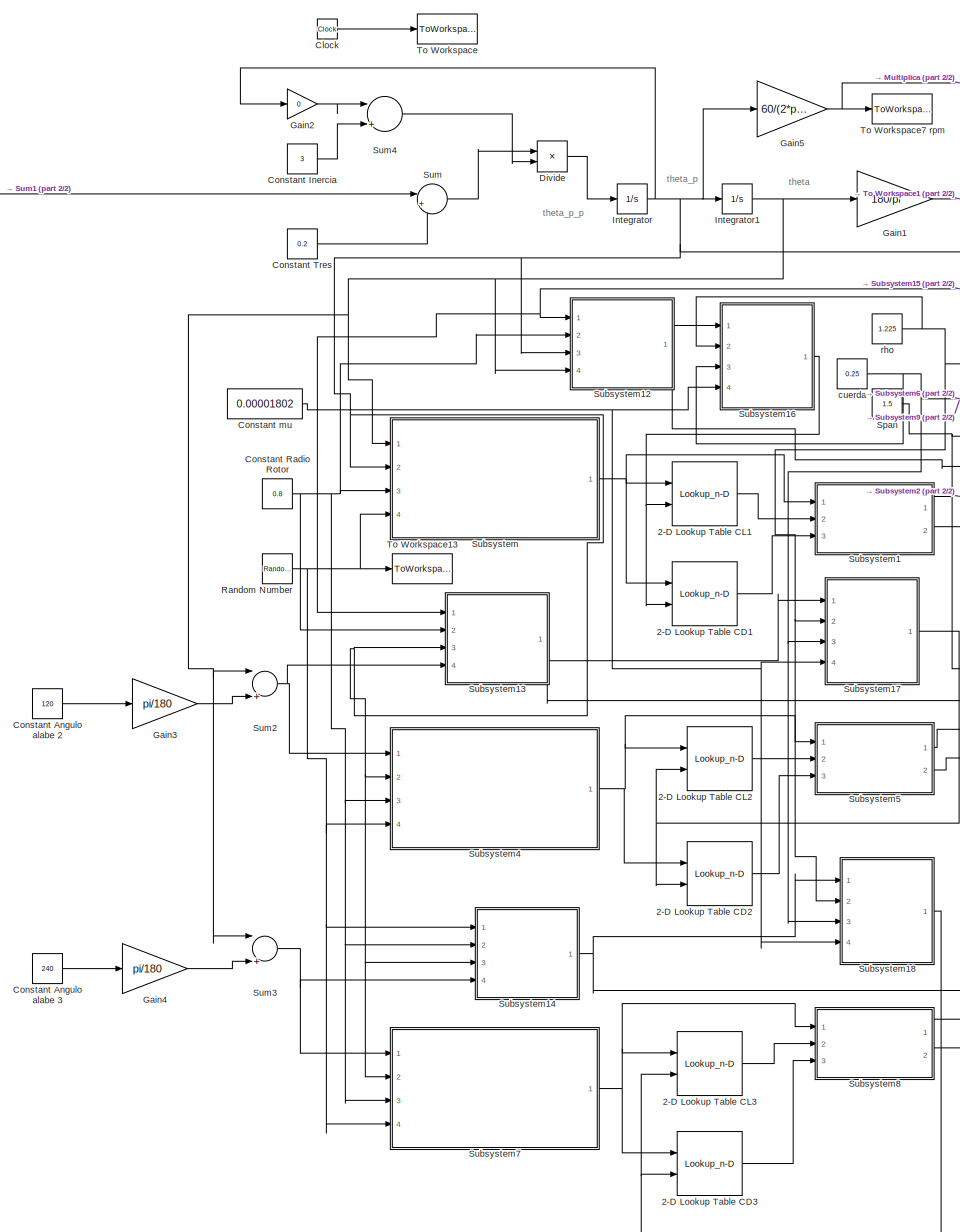
[diagram: root canvas - part 1/2, left side, full height]
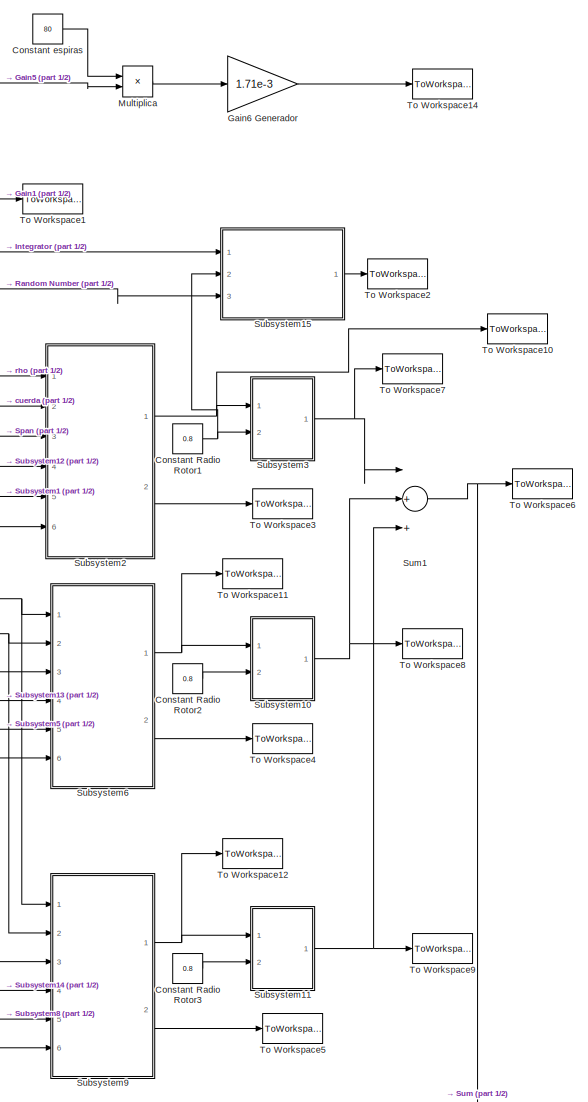
[diagram: root canvas - part 2/2, right side, full height]
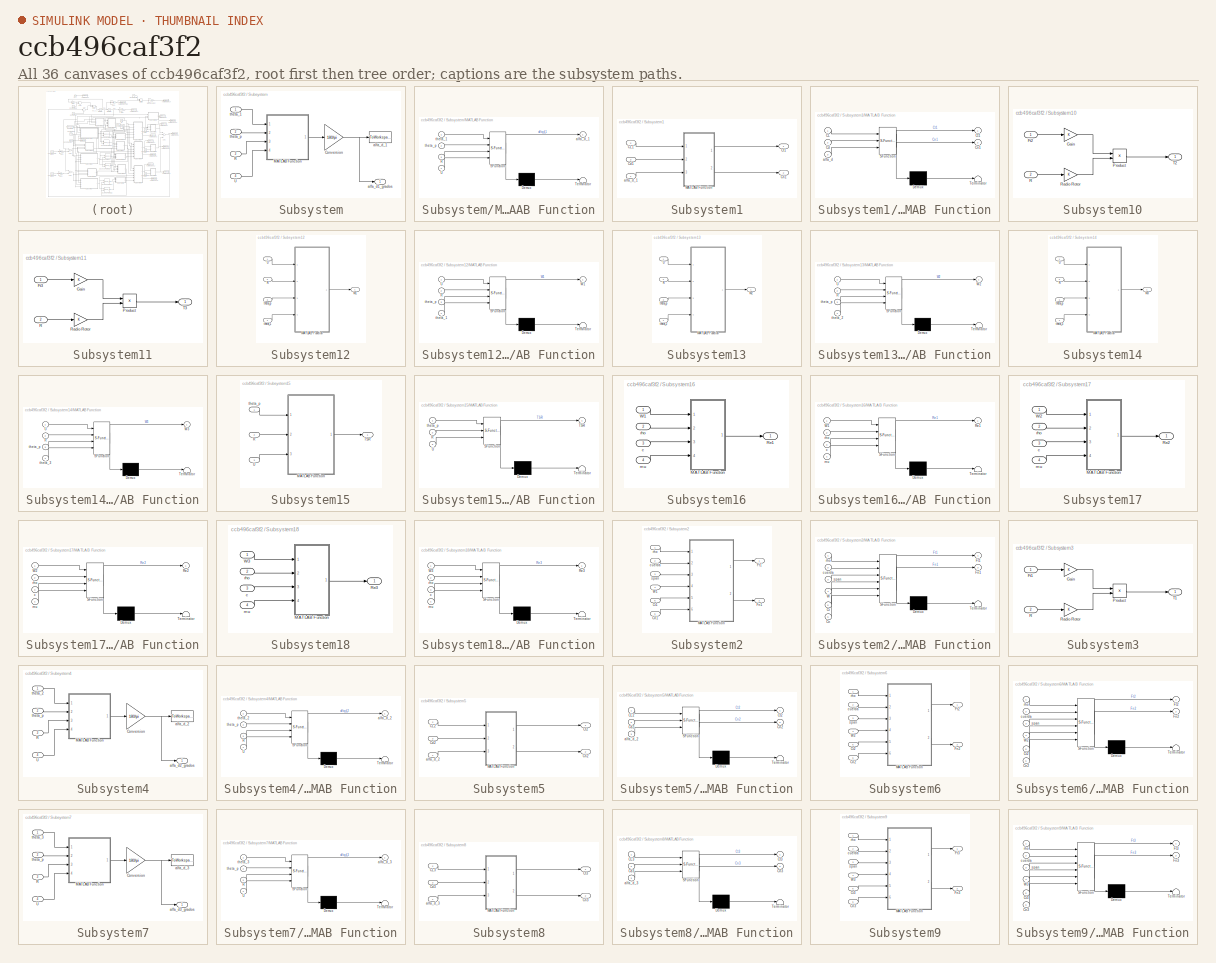
[diagram: thumbnail index - all 36 canvases of the model, root first then tree order]
MODEL slx_ccb496caf3f2
KIND model
CONFIG PostLoadFcn = % Import the data from Excel for a lookup table\ndata_CL = xlsread('DATOS_LOOK_UP_TABLE_CL_v2','CL');\n% Row indices for lookup table\nbreakpoints1_CL = data_CL(2:end,1)';\n% Column indices for lookup table\nbreakpoints2_CL = data_CL(1,2:end);\n% Output values for lookup table\ntable_data_CL = data_CL(2:end,2:end);\n\n% Import the data from Excel for a lookup table\ndata_CD = xlsread('DATOS_LOOK_UP_TABLE_CL...<+220ch>
BLOCK [Lookup_n-D] 2-D Lookup Table CD1
  BreakpointsForDimension1 = breakpoints1_CD
  BreakpointsForDimension2 = breakpoints2_CD
  Ports = [2, 1]
  RndMeth = Simplest
  Table = table_data_CD
BLOCK [Lookup_n-D] 2-D Lookup Table CD2
  BreakpointsForDimension1 = breakpoints1_CD
  BreakpointsForDimension2 = breakpoints2_CD
  Ports = [2, 1]
  RndMeth = Simplest
  Table = table_data_CD
BLOCK [Lookup_n-D] 2-D Lookup Table CD3
  BreakpointsForDimension1 = breakpoints1_CD
  BreakpointsForDimension2 = breakpoints2_CD
  Ports = [2, 1]
  RndMeth = Simplest
  Table = table_data_CD
BLOCK [Lookup_n-D] 2-D Lookup Table CL1
  BreakpointsForDimension1 = breakpoints1_CL
  BreakpointsForDimension2 = breakpoints2_CL
  Ports = [2, 1]
  RndMeth = Simplest
  Table = table_data_CL
BLOCK [Lookup_n-D] 2-D Lookup Table CL2
  BreakpointsForDimension1 = breakpoints1_CL
  BreakpointsForDimension2 = breakpoints2_CL
  Ports = [2, 1]
  RndMeth = Simplest
  Table = table_data_CL
BLOCK [Lookup_n-D] 2-D Lookup Table CL3
  BreakpointsForDimension1 = breakpoints1_CL
  BreakpointsForDimension2 = breakpoints2_CL
  Ports = [2, 1]
  RndMeth = Simplest
  Table = table_data_CL
BLOCK [Clock] Clock
BLOCK [Constant] Constant Angulo alabe 2
  Value = 120
BLOCK [Constant] Constant Angulo alabe 3
  Value = 240
BLOCK [Constant] Constant Inercia
  Value = 3
BLOCK [Constant] Constant Radio Rotor
  Value = 0.8
BLOCK [Constant] Constant Radio Rotor1
  Value = 0.8
BLOCK [Constant] Constant Radio Rotor2
  Value = 0.8
BLOCK [Constant] Constant Radio Rotor3
  Value = 0.8
BLOCK [Constant] Constant Tres
  Value = 0.2
BLOCK [Constant] Constant espiras
  Value = 80
BLOCK [Constant] Constant mu
  Value = 0.00001802
BLOCK [Product] Divide
  InputSameDT = off
  Inputs = */
  OutDataTypeStr = Inherit: Inherit via internal rule
  Ports = [2, 1]
  RndMeth = Floor
  SaturateOnIntegerOverflow = off
BLOCK [Gain] Gain1
  Gain = 180/pi
  OutDataTypeStr = Inherit: Inherit via internal rule
  ParamDataTypeStr = Inherit: Inherit via internal rule
  SaturateOnIntegerOverflow = off
BLOCK [Gain] Gain2
  Gain = 0
  OutDataTypeStr = Inherit: Inherit via internal rule
  ParamDataTypeStr = Inherit: Inherit via internal rule
  SaturateOnIntegerOverflow = off
BLOCK [Gain] Gain3
  Gain = pi/180
  OutDataTypeStr = Inherit: Inherit via internal rule
  ParamDataTypeStr = Inherit: Inherit via internal rule
  SaturateOnIntegerOverflow = off
BLOCK [Gain] Gain4
  Gain = pi/180
  OutDataTypeStr = Inherit: Inherit via internal rule
  ParamDataTypeStr = Inherit: Inherit via internal rule
  SaturateOnIntegerOverflow = off
BLOCK [Gain] Gain5
  Gain = 60/(2*pi)
  OutDataTypeStr = Inherit: Inherit via internal rule
  ParamDataTypeStr = Inherit: Inherit via internal rule
  SaturateOnIntegerOverflow = off
BLOCK [Gain] Gain6 Generador
  Gain = 1.71e-3
  OutDataTypeStr = Inherit: Inherit via internal rule
  ParamDataTypeStr = Inherit: Inherit via internal rule
  SaturateOnIntegerOverflow = off
BLOCK [Integrator] Integrator
  Ports = [1, 1]
BLOCK [Integrator] Integrator1
  Ports = [1, 1]
BLOCK [Product] Multiplica
  InputSameDT = off
  Inputs = **
  OutDataTypeStr = Inherit: Inherit via internal rule
  Ports = [2, 1]
  RndMeth = Floor
  SaturateOnIntegerOverflow = off
BLOCK [RandomNumber] Random Number
  Mean = 8
  SampleTime = 0.1
  Seed = 6
  Variance = 4
BLOCK [Constant] Span
  Value = 1.5
BLOCK [SubSystem] Subsystem
  FunctionWithSeparateData = off
  MaskHideContents = off
  MinAlgLoopOccurrences = off
  Opaque = off
  Ports = [4, 1]
  PropExecContextOutsideSubsystem = off
  RTWSystemCode = Auto
  RequestExecContextInheritance = off
BLOCK [Gain] Subsystem/Conversion
  Gain = 180/pi
  OutDataTypeStr = Inherit: Inherit via internal rule
  ParamDataTypeStr = Inherit: Inherit via internal rule
  SaturateOnIntegerOverflow = off
BLOCK [SubSystem] Subsystem/MATLAB Function
  ErrorFcn = Stateflow.Translate.translate
  FunctionWithSeparateData = off
  MaskHideContents = off
  MinAlgLoopOccurrences = off
  Opaque = off
  PermitHierarchicalResolution = ExplicitOnly
  Ports = [4, 1]
  PropExecContextOutsideSubsystem = off
  RTWSystemCode = Auto
  RequestExecContextInheritance = off
  SFBlockType = MATLAB Function
  TreatAsAtomicUnit = on
BLOCK [Demux] Subsystem/MATLAB Function/ Demux 
  Outputs = 1
  Ports = [1, 1]
BLOCK [S-Function] Subsystem/MATLAB Function/ SFunction 
  EnableBusSupport = on
  FunctionName = sf_sfun
  PortCounts = [4 2]
  Ports = [4, 2]
  Tag = Stateflow S-Function v3_modelo 2
BLOCK [Terminator] Subsystem/MATLAB Function/ Terminator 
BLOCK [Inport] Subsystem/MATLAB Function/R
  IconDisplay = Port number
  Port = 3
BLOCK [Inport] Subsystem/MATLAB Function/U
  IconDisplay = Port number
  Port = 4
BLOCK [Outport] Subsystem/MATLAB Function/alfa_d_1
  IconDisplay = Port number
BLOCK [Inport] Subsystem/MATLAB Function/theta_1
  IconDisplay = Port number
BLOCK [Inport] Subsystem/MATLAB Function/theta_p
  IconDisplay = Port number
  Port = 2
BLOCK [Inport] Subsystem/R
  IconDisplay = Port number
  Port = 3
BLOCK [Inport] Subsystem/U
  IconDisplay = Port number
  Port = 4
BLOCK [Outport] Subsystem/alfa_d1_grados
  IconDisplay = Port number
BLOCK [ToWorkspace] Subsystem/alfa_d_1
  MaxDataPoints = inf
  Ports = [1]
  SampleTime = -1
  VariableName = alfa_d_1
BLOCK [Inport] Subsystem/theta_1
  IconDisplay = Port number
BLOCK [Inport] Subsystem/theta_p
  IconDisplay = Port number
  Port = 2
BLOCK [SubSystem] Subsystem1
  FunctionWithSeparateData = off
  MaskHideContents = off
  MinAlgLoopOccurrences = off
  Opaque = off
  Ports = [3, 2]
  PropExecContextOutsideSubsystem = off
  RTWSystemCode = Auto
  RequestExecContextInheritance = off
BLOCK [Inport] Subsystem1/CL1
  IconDisplay = Port number
  Port = 2
BLOCK [Inport] Subsystem1/Cd1
  IconDisplay = Port number
  Port = 3
BLOCK [Outport] Subsystem1/Cn1
  IconDisplay = Port number
  Port = 2
BLOCK [Outport] Subsystem1/Ct1
  IconDisplay = Port number
BLOCK [SubSystem] Subsystem1/MATLAB Function
  ErrorFcn = Stateflow.Translate.translate
  FunctionWithSeparateData = off
  MaskHideContents = off
  MinAlgLoopOccurrences = off
  Opaque = off
  PermitHierarchicalResolution = ExplicitOnly
  Ports = [3, 2]
  PropExecContextOutsideSubsystem = off
  RTWSystemCode = Auto
  RequestExecContextInheritance = off
  SFBlockType = MATLAB Function
  TreatAsAtomicUnit = on
BLOCK [Demux] Subsystem1/MATLAB Function/ Demux 
  Outputs = 1
  Ports = [1, 1]
BLOCK [S-Function] Subsystem1/MATLAB Function/ SFunction 
  EnableBusSupport = on
  FunctionName = sf_sfun
  PortCounts = [3 3]
  Ports = [3, 3]
  Tag = Stateflow S-Function v3_modelo 1
BLOCK [Terminator] Subsystem1/MATLAB Function/ Terminator 
BLOCK [Inport] Subsystem1/MATLAB Function/CL
  IconDisplay = Port number
BLOCK [Inport] Subsystem1/MATLAB Function/Cd
  IconDisplay = Port number
  Port = 2
BLOCK [Outport] Subsystem1/MATLAB Function/Cn1
  IconDisplay = Port number
  Port = 2
BLOCK [Outport] Subsystem1/MATLAB Function/Ct1
  IconDisplay = Port number
BLOCK [Inport] Subsystem1/MATLAB Function/alfa_d
  IconDisplay = Port number
  Port = 3
BLOCK [Inport] Subsystem1/alfa_d_1
  IconDisplay = Port number
BLOCK [SubSystem] Subsystem10
  FunctionWithSeparateData = off
  MaskHideContents = off
  MinAlgLoopOccurrences = off
  Opaque = off
  Ports = [2, 1]
  PropExecContextOutsideSubsystem = off
  RTWSystemCode = Auto
  RequestExecContextInheritance = off
BLOCK [Inport] Subsystem10/Ft2
  IconDisplay = Port number
BLOCK [Gain] Subsystem10/Gain
  OutDataTypeStr = Inherit: Inherit via internal rule
  ParamDataTypeStr = Inherit: Inherit via internal rule
  SaturateOnIntegerOverflow = off
BLOCK [Product] Subsystem10/Product
  InputSameDT = off
  OutDataTypeStr = Inherit: Inherit via internal rule
  Ports = [2, 1]
  RndMeth = Floor
  SaturateOnIntegerOverflow = off
BLOCK [Inport] Subsystem10/R
  IconDisplay = Port number
  Port = 2
BLOCK [Gain] Subsystem10/Radio Rotor
  OutDataTypeStr = Inherit: Inherit via internal rule
  ParamDataTypeStr = Inherit: Inherit via internal rule
  SaturateOnIntegerOverflow = off
BLOCK [Outport] Subsystem10/T2
  IconDisplay = Port number
BLOCK [SubSystem] Subsystem11
  FunctionWithSeparateData = off
  MaskHideContents = off
  MinAlgLoopOccurrences = off
  Opaque = off
  Ports = [2, 1]
  PropExecContextOutsideSubsystem = off
  RTWSystemCode = Auto
  RequestExecContextInheritance = off
BLOCK [Inport] Subsystem11/Ft3
  IconDisplay = Port number
BLOCK [Gain] Subsystem11/Gain
  OutDataTypeStr = Inherit: Inherit via internal rule
  ParamDataTypeStr = Inherit: Inherit via internal rule
  SaturateOnIntegerOverflow = off
BLOCK [Product] Subsystem11/Product
  InputSameDT = off
  OutDataTypeStr = Inherit: Inherit via internal rule
  Ports = [2, 1]
  RndMeth = Floor
  SaturateOnIntegerOverflow = off
BLOCK [Inport] Subsystem11/R
  IconDisplay = Port number
  Port = 2
BLOCK [Gain] Subsystem11/Radio Rotor
  OutDataTypeStr = Inherit: Inherit via internal rule
  ParamDataTypeStr = Inherit: Inherit via internal rule
  SaturateOnIntegerOverflow = off
BLOCK [Outport] Subsystem11/T3
  IconDisplay = Port number
BLOCK [SubSystem] Subsystem12
  FunctionWithSeparateData = off
  MaskHideContents = off
  MinAlgLoopOccurrences = off
  Opaque = off
  Ports = [4, 1]
  PropExecContextOutsideSubsystem = off
  RTWSystemCode = Auto
  RequestExecContextInheritance = off
BLOCK [SubSystem] Subsystem12/MATLAB Function
  ErrorFcn = Stateflow.Translate.translate
  FunctionWithSeparateData = off
  MaskHideContents = off
  MinAlgLoopOccurrences = off
  Opaque = off
  PermitHierarchicalResolution = ExplicitOnly
  Ports = [4, 1]
  PropExecContextOutsideSubsystem = off
  RTWSystemCode = Auto
  RequestExecContextInheritance = off
  SFBlockType = MATLAB Function
  TreatAsAtomicUnit = on
BLOCK [Demux] Subsystem12/MATLAB Function/ Demux 
  Outputs = 1
  Ports = [1, 1]
BLOCK [S-Function] Subsystem12/MATLAB Function/ SFunction 
  EnableBusSupport = on
  FunctionName = sf_sfun
  PortCounts = [4 2]
  Ports = [4, 2]
  Tag = Stateflow S-Function v3_modelo 10
BLOCK [Terminator] Subsystem12/MATLAB Function/ Terminator 
BLOCK [Inport] Subsystem12/MATLAB Function/R
  IconDisplay = Port number
  Port = 2
BLOCK [Inport] Subsystem12/MATLAB Function/U
  IconDisplay = Port number
BLOCK [Outport] Subsystem12/MATLAB Function/W1
  IconDisplay = Port number
BLOCK [Inport] Subsystem12/MATLAB Function/theta_1
  IconDisplay = Port number
  Port = 4
BLOCK [Inport] Subsystem12/MATLAB Function/theta_p
  IconDisplay = Port number
  Port = 3
BLOCK [Inport] Subsystem12/R
  IconDisplay = Port number
  Port = 2
BLOCK [Inport] Subsystem12/U
  IconDisplay = Port number
BLOCK [Outport] Subsystem12/W1
  IconDisplay = Port number
BLOCK [Inport] Subsystem12/theta_1
  IconDisplay = Port number
  Port = 4
BLOCK [Inport] Subsystem12/theta_p
  IconDisplay = Port number
  Port = 3
BLOCK [SubSystem] Subsystem13
  FunctionWithSeparateData = off
  MaskHideContents = off
  MinAlgLoopOccurrences = off
  Opaque = off
  Ports = [4, 1]
  PropExecContextOutsideSubsystem = off
  RTWSystemCode = Auto
  RequestExecContextInheritance = off
BLOCK [SubSystem] Subsystem13/MATLAB Function
  ErrorFcn = Stateflow.Translate.translate
  FunctionWithSeparateData = off
  MaskHideContents = off
  MinAlgLoopOccurrences = off
  Opaque = off
  PermitHierarchicalResolution = ExplicitOnly
  Ports = [4, 1]
  PropExecContextOutsideSubsystem = off
  RTWSystemCode = Auto
  RequestExecContextInheritance = off
  SFBlockType = MATLAB Function
  TreatAsAtomicUnit = on
BLOCK [Demux] Subsystem13/MATLAB Function/ Demux 
  Outputs = 1
  Ports = [1, 1]
BLOCK [S-Function] Subsystem13/MATLAB Function/ SFunction 
  EnableBusSupport = on
  FunctionName = sf_sfun
  PortCounts = [4 2]
  Ports = [4, 2]
  Tag = Stateflow S-Function v3_modelo 11
BLOCK [Terminator] Subsystem13/MATLAB Function/ Terminator 
BLOCK [Inport] Subsystem13/MATLAB Function/R
  IconDisplay = Port number
  Port = 2
BLOCK [Inport] Subsystem13/MATLAB Function/U
  IconDisplay = Port number
BLOCK [Outport] Subsystem13/MATLAB Function/W2
  IconDisplay = Port number
BLOCK [Inport] Subsystem13/MATLAB Function/theta_2
  IconDisplay = Port number
  Port = 4
BLOCK [Inport] Subsystem13/MATLAB Function/theta_p
  IconDisplay = Port number
  Port = 3
BLOCK [Inport] Subsystem13/R
  IconDisplay = Port number
  Port = 2
BLOCK [Inport] Subsystem13/U
  IconDisplay = Port number
BLOCK [Outport] Subsystem13/W2
  IconDisplay = Port number
BLOCK [Inport] Subsystem13/theta_2
  IconDisplay = Port number
  Port = 4
BLOCK [Inport] Subsystem13/theta_p
  IconDisplay = Port number
  Port = 3
BLOCK [SubSystem] Subsystem14
  FunctionWithSeparateData = off
  MaskHideContents = off
  MinAlgLoopOccurrences = off
  Opaque = off
  Ports = [4, 1]
  PropExecContextOutsideSubsystem = off
  RTWSystemCode = Auto
  RequestExecContextInheritance = off
BLOCK [SubSystem] Subsystem14/MATLAB Function
  ErrorFcn = Stateflow.Translate.translate
  FunctionWithSeparateData = off
  MaskHideContents = off
  MinAlgLoopOccurrences = off
  Opaque = off
  PermitHierarchicalResolution = ExplicitOnly
  Ports = [4, 1]
  PropExecContextOutsideSubsystem = off
  RTWSystemCode = Auto
  RequestExecContextInheritance = off
  SFBlockType = MATLAB Function
  TreatAsAtomicUnit = on
BLOCK [Demux] Subsystem14/MATLAB Function/ Demux 
  Outputs = 1
  Ports = [1, 1]
BLOCK [S-Function] Subsystem14/MATLAB Function/ SFunction 
  EnableBusSupport = on
  FunctionName = sf_sfun
  PortCounts = [4 2]
  Ports = [4, 2]
  Tag = Stateflow S-Function v3_modelo 12
BLOCK [Terminator] Subsystem14/MATLAB Function/ Terminator 
BLOCK [Inport] Subsystem14/MATLAB Function/R
  IconDisplay = Port number
  Port = 2
BLOCK [Inport] Subsystem14/MATLAB Function/U
  IconDisplay = Port number
BLOCK [Outport] Subsystem14/MATLAB Function/W3
  IconDisplay = Port number
BLOCK [Inport] Subsystem14/MATLAB Function/theta_3
  IconDisplay = Port number
  Port = 4
BLOCK [Inport] Subsystem14/MATLAB Function/theta_p
  IconDisplay = Port number
  Port = 3
BLOCK [Inport] Subsystem14/R
  IconDisplay = Port number
  Port = 2
BLOCK [Inport] Subsystem14/U
  IconDisplay = Port number
BLOCK [Outport] Subsystem14/W3
  IconDisplay = Port number
BLOCK [Inport] Subsystem14/theta_3
  IconDisplay = Port number
  Port = 4
BLOCK [Inport] Subsystem14/theta_p
  IconDisplay = Port number
  Port = 3
BLOCK [SubSystem] Subsystem15
  FunctionWithSeparateData = off
  MaskHideContents = off
  MinAlgLoopOccurrences = off
  Opaque = off
  Ports = [3, 1]
  PropExecContextOutsideSubsystem = off
  RTWSystemCode = Auto
  RequestExecContextInheritance = off
BLOCK [SubSystem] Subsystem15/MATLAB Function
  ErrorFcn = Stateflow.Translate.translate
  FunctionWithSeparateData = off
  MaskHideContents = off
  MinAlgLoopOccurrences = off
  Opaque = off
  PermitHierarchicalResolution = ExplicitOnly
  Ports = [3, 1]
  PropExecContextOutsideSubsystem = off
  RTWSystemCode = Auto
  RequestExecContextInheritance = off
  SFBlockType = MATLAB Function
  TreatAsAtomicUnit = on
BLOCK [Demux] Subsystem15/MATLAB Function/ Demux 
  Outputs = 1
  Ports = [1, 1]
BLOCK [S-Function] Subsystem15/MATLAB Function/ SFunction 
  EnableBusSupport = on
  FunctionName = sf_sfun
  PortCounts = [3 2]
  Ports = [3, 2]
  Tag = Stateflow S-Function v3_modelo 13
BLOCK [Terminator] Subsystem15/MATLAB Function/ Terminator 
BLOCK [Inport] Subsystem15/MATLAB Function/R
  IconDisplay = Port number
  Port = 2
BLOCK [Outport] Subsystem15/MATLAB Function/TSR
  IconDisplay = Port number
BLOCK [Inport] Subsystem15/MATLAB Function/U
  IconDisplay = Port number
  Port = 3
BLOCK [Inport] Subsystem15/MATLAB Function/theta_p
  IconDisplay = Port number
BLOCK [Inport] Subsystem15/R
  IconDisplay = Port number
  Port = 2
BLOCK [Outport] Subsystem15/TSR
  IconDisplay = Port number
BLOCK [Inport] Subsystem15/U
  IconDisplay = Port number
  Port = 3
BLOCK [Inport] Subsystem15/theta_p
  IconDisplay = Port number
BLOCK [SubSystem] Subsystem16
  FunctionWithSeparateData = off
  MaskHideContents = off
  MinAlgLoopOccurrences = off
  Opaque = off
  Ports = [4, 1]
  PropExecContextOutsideSubsystem = off
  RTWSystemCode = Auto
  RequestExecContextInheritance = off
BLOCK [SubSystem] Subsystem16/MATLAB Function
  ErrorFcn = Stateflow.Translate.translate
  FunctionWithSeparateData = off
  MaskHideContents = off
  MinAlgLoopOccurrences = off
  Opaque = off
  PermitHierarchicalResolution = ExplicitOnly
  Ports = [4, 1]
  PropExecContextOutsideSubsystem = off
  RTWSystemCode = Auto
  RequestExecContextInheritance = off
  SFBlockType = MATLAB Function
  TreatAsAtomicUnit = on
BLOCK [Demux] Subsystem16/MATLAB Function/ Demux 
  Outputs = 1
  Ports = [1, 1]
BLOCK [S-Function] Subsystem16/MATLAB Function/ SFunction 
  EnableBusSupport = on
  FunctionName = sf_sfun
  PortCounts = [4 2]
  Ports = [4, 2]
  Tag = Stateflow S-Function v3_modelo 15
BLOCK [Terminator] Subsystem16/MATLAB Function/ Terminator 
BLOCK [Outport] Subsystem16/MATLAB Function/Re1
  IconDisplay = Port number
BLOCK [Inport] Subsystem16/MATLAB Function/W1
  IconDisplay = Port number
BLOCK [Inport] Subsystem16/MATLAB Function/c
  IconDisplay = Port number
  Port = 3
BLOCK [Inport] Subsystem16/MATLAB Function/mu
  IconDisplay = Port number
  Port = 4
BLOCK [Inport] Subsystem16/MATLAB Function/rho
  IconDisplay = Port number
  Port = 2
BLOCK [Outport] Subsystem16/Re1
  IconDisplay = Port number
BLOCK [Inport] Subsystem16/W1
  IconDisplay = Port number
BLOCK [Inport] Subsystem16/c
  IconDisplay = Port number
  Port = 3
BLOCK [Inport] Subsystem16/mu
  IconDisplay = Port number
  Port = 4
BLOCK [Inport] Subsystem16/rho
  IconDisplay = Port number
  Port = 2
BLOCK [SubSystem] Subsystem17
  FunctionWithSeparateData = off
  MaskHideContents = off
  MinAlgLoopOccurrences = off
  Opaque = off
  Ports = [4, 1]
  PropExecContextOutsideSubsystem = off
  RTWSystemCode = Auto
  RequestExecContextInheritance = off
BLOCK [SubSystem] Subsystem17/MATLAB Function
  ErrorFcn = Stateflow.Translate.translate
  FunctionWithSeparateData = off
  MaskHideContents = off
  MinAlgLoopOccurrences = off
  Opaque = off
  PermitHierarchicalResolution = ExplicitOnly
  Ports = [4, 1]
  PropExecContextOutsideSubsystem = off
  RTWSystemCode = Auto
  RequestExecContextInheritance = off
  SFBlockType = MATLAB Function
  TreatAsAtomicUnit = on
BLOCK [Demux] Subsystem17/MATLAB Function/ Demux 
  Outputs = 1
  Ports = [1, 1]
BLOCK [S-Function] Subsystem17/MATLAB Function/ SFunction 
  EnableBusSupport = on
  FunctionName = sf_sfun
  PortCounts = [4 2]
  Ports = [4, 2]
  Tag = Stateflow S-Function v3_modelo 14
BLOCK [Terminator] Subsystem17/MATLAB Function/ Terminator 
BLOCK [Outport] Subsystem17/MATLAB Function/Re2
  IconDisplay = Port number
BLOCK [Inport] Subsystem17/MATLAB Function/W2
  IconDisplay = Port number
BLOCK [Inport] Subsystem17/MATLAB Function/c
  IconDisplay = Port number
  Port = 3
BLOCK [Inport] Subsystem17/MATLAB Function/mu
  IconDisplay = Port number
  Port = 4
BLOCK [Inport] Subsystem17/MATLAB Function/rho
  IconDisplay = Port number
  Port = 2
BLOCK [Outport] Subsystem17/Re2
  IconDisplay = Port number
BLOCK [Inport] Subsystem17/W2
  IconDisplay = Port number
BLOCK [Inport] Subsystem17/c
  IconDisplay = Port number
  Port = 3
BLOCK [Inport] Subsystem17/mu
  IconDisplay = Port number
  Port = 4
BLOCK [Inport] Subsystem17/rho
  IconDisplay = Port number
  Port = 2
BLOCK [SubSystem] Subsystem18
  FunctionWithSeparateData = off
  MaskHideContents = off
  MinAlgLoopOccurrences = off
  Opaque = off
  Ports = [4, 1]
  PropExecContextOutsideSubsystem = off
  RTWSystemCode = Auto
  RequestExecContextInheritance = off
BLOCK [SubSystem] Subsystem18/MATLAB Function
  ErrorFcn = Stateflow.Translate.translate
  FunctionWithSeparateData = off
  MaskHideContents = off
  MinAlgLoopOccurrences = off
  Opaque = off
  PermitHierarchicalResolution = ExplicitOnly
  Ports = [4, 1]
  PropExecContextOutsideSubsystem = off
  RTWSystemCode = Auto
  RequestExecContextInheritance = off
  SFBlockType = MATLAB Function
  TreatAsAtomicUnit = on
BLOCK [Demux] Subsystem18/MATLAB Function/ Demux 
  Outputs = 1
  Ports = [1, 1]
BLOCK [S-Function] Subsystem18/MATLAB Function/ SFunction 
  EnableBusSupport = on
  FunctionName = sf_sfun
  PortCounts = [4 2]
  Ports = [4, 2]
  Tag = Stateflow S-Function v3_modelo 16
BLOCK [Terminator] Subsystem18/MATLAB Function/ Terminator 
BLOCK [Outport] Subsystem18/MATLAB Function/Re3
  IconDisplay = Port number
BLOCK [Inport] Subsystem18/MATLAB Function/W3
  IconDisplay = Port number
BLOCK [Inport] Subsystem18/MATLAB Function/c
  IconDisplay = Port number
  Port = 3
BLOCK [Inport] Subsystem18/MATLAB Function/mu
  IconDisplay = Port number
  Port = 4
BLOCK [Inport] Subsystem18/MATLAB Function/rho
  IconDisplay = Port number
  Port = 2
BLOCK [Outport] Subsystem18/Re3
  IconDisplay = Port number
BLOCK [Inport] Subsystem18/W3
  IconDisplay = Port number
BLOCK [Inport] Subsystem18/c
  IconDisplay = Port number
  Port = 3
BLOCK [Inport] Subsystem18/mu
  IconDisplay = Port number
  Port = 4
BLOCK [Inport] Subsystem18/rho
  IconDisplay = Port number
  Port = 2
BLOCK [SubSystem] Subsystem2
  FunctionWithSeparateData = off
  MaskHideContents = off
  MinAlgLoopOccurrences = off
  Opaque = off
  Ports = [6, 2]
  PropExecContextOutsideSubsystem = off
  RTWSystemCode = Auto
  RequestExecContextInheritance = off
BLOCK [Inport] Subsystem2/Cn1
  IconDisplay = Port number
  Port = 6
BLOCK [Inport] Subsystem2/Ct1
  IconDisplay = Port number
  Port = 5
BLOCK [Outport] Subsystem2/Fn1
  IconDisplay = Port number
  Port = 2
BLOCK [Outport] Subsystem2/Ft1
  IconDisplay = Port number
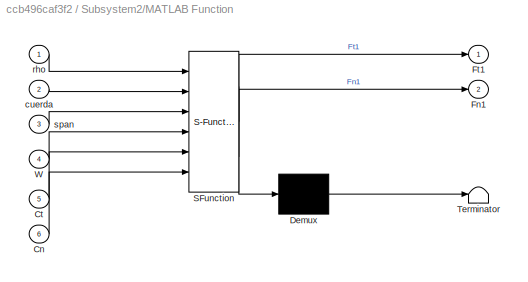
BLOCK [SubSystem] Subsystem2/MATLAB Function
  ErrorFcn = Stateflow.Translate.translate
  FunctionWithSeparateData = off
  MaskHideContents = off
  MinAlgLoopOccurrences = off
  Opaque = off
  PermitHierarchicalResolution = ExplicitOnly
  Ports = [6, 2]
  PropExecContextOutsideSubsystem = off
  RTWSystemCode = Auto
  RequestExecContextInheritance = off
  SFBlockType = MATLAB Function
  TreatAsAtomicUnit = on
BLOCK [Demux] Subsystem2/MATLAB Function/ Demux 
  Outputs = 1
  Ports = [1, 1]
BLOCK [S-Function] Subsystem2/MATLAB Function/ SFunction 
  EnableBusSupport = on
  FunctionName = sf_sfun
  PortCounts = [6 3]
  Ports = [6, 3]
  Tag = Stateflow S-Function v3_modelo 3
BLOCK [Terminator] Subsystem2/MATLAB Function/ Terminator 
BLOCK [Inport] Subsystem2/MATLAB Function/Cn
  IconDisplay = Port number
  Port = 6
BLOCK [Inport] Subsystem2/MATLAB Function/Ct
  IconDisplay = Port number
  Port = 5
BLOCK [Outport] Subsystem2/MATLAB Function/Fn1
  IconDisplay = Port number
  Port = 2
BLOCK [Outport] Subsystem2/MATLAB Function/Ft1
  IconDisplay = Port number
BLOCK [Inport] Subsystem2/MATLAB Function/W
  IconDisplay = Port number
  Port = 4
BLOCK [Inport] Subsystem2/MATLAB Function/cuerda
  IconDisplay = Port number
  Port = 2
BLOCK [Inport] Subsystem2/MATLAB Function/rho
  IconDisplay = Port number
BLOCK [Inport] Subsystem2/MATLAB Function/span
  IconDisplay = Port number
  Port = 3
BLOCK [Inport] Subsystem2/W1
  IconDisplay = Port number
  Port = 4
BLOCK [Inport] Subsystem2/cuerda
  IconDisplay = Port number
  Port = 2
BLOCK [Inport] Subsystem2/rho
  IconDisplay = Port number
BLOCK [Inport] Subsystem2/span
  IconDisplay = Port number
  Port = 3
BLOCK [SubSystem] Subsystem3
  FunctionWithSeparateData = off
  MaskHideContents = off
  MinAlgLoopOccurrences = off
  Opaque = off
  Ports = [2, 1]
  PropExecContextOutsideSubsystem = off
  RTWSystemCode = Auto
  RequestExecContextInheritance = off
BLOCK [Inport] Subsystem3/Ft1
  IconDisplay = Port number
BLOCK [Gain] Subsystem3/Gain
  OutDataTypeStr = Inherit: Inherit via internal rule
  ParamDataTypeStr = Inherit: Inherit via internal rule
  SaturateOnIntegerOverflow = off
BLOCK [Product] Subsystem3/Product
  InputSameDT = off
  OutDataTypeStr = Inherit: Inherit via internal rule
  Ports = [2, 1]
  RndMeth = Floor
  SaturateOnIntegerOverflow = off
BLOCK [Inport] Subsystem3/R
  IconDisplay = Port number
  Port = 2
BLOCK [Gain] Subsystem3/Radio Rotor
  OutDataTypeStr = Inherit: Inherit via internal rule
  ParamDataTypeStr = Inherit: Inherit via internal rule
  SaturateOnIntegerOverflow = off
BLOCK [Outport] Subsystem3/T1
  IconDisplay = Port number
BLOCK [SubSystem] Subsystem4
  FunctionWithSeparateData = off
  MaskHideContents = off
  MinAlgLoopOccurrences = off
  Opaque = off
  Ports = [4, 1]
  PropExecContextOutsideSubsystem = off
  RTWSystemCode = Auto
  RequestExecContextInheritance = off
BLOCK [Gain] Subsystem4/Conversion
  Gain = 180/pi
  OutDataTypeStr = Inherit: Inherit via internal rule
  ParamDataTypeStr = Inherit: Inherit via internal rule
  SaturateOnIntegerOverflow = off
BLOCK [SubSystem] Subsystem4/MATLAB Function
  ErrorFcn = Stateflow.Translate.translate
  FunctionWithSeparateData = off
  MaskHideContents = off
  MinAlgLoopOccurrences = off
  Opaque = off
  PermitHierarchicalResolution = ExplicitOnly
  Ports = [4, 1]
  PropExecContextOutsideSubsystem = off
  RTWSystemCode = Auto
  RequestExecContextInheritance = off
  SFBlockType = MATLAB Function
  TreatAsAtomicUnit = on
BLOCK [Demux] Subsystem4/MATLAB Function/ Demux 
  Outputs = 1
  Ports = [1, 1]
BLOCK [S-Function] Subsystem4/MATLAB Function/ SFunction 
  EnableBusSupport = on
  FunctionName = sf_sfun
  PortCounts = [4 2]
  Ports = [4, 2]
  Tag = Stateflow S-Function v3_modelo 4
BLOCK [Terminator] Subsystem4/MATLAB Function/ Terminator 
BLOCK [Inport] Subsystem4/MATLAB Function/R
  IconDisplay = Port number
  Port = 3
BLOCK [Inport] Subsystem4/MATLAB Function/U
  IconDisplay = Port number
  Port = 4
BLOCK [Outport] Subsystem4/MATLAB Function/alfa_d_2
  IconDisplay = Port number
BLOCK [Inport] Subsystem4/MATLAB Function/theta_2
  IconDisplay = Port number
BLOCK [Inport] Subsystem4/MATLAB Function/theta_p
  IconDisplay = Port number
  Port = 2
BLOCK [Inport] Subsystem4/R
  IconDisplay = Port number
  Port = 3
BLOCK [Inport] Subsystem4/U
  IconDisplay = Port number
  Port = 4
BLOCK [Outport] Subsystem4/alfa_d2_grados
  IconDisplay = Port number
BLOCK [ToWorkspace] Subsystem4/alfa_d_2
  MaxDataPoints = inf
  Ports = [1]
  SampleTime = -1
  VariableName = alfa_d_2
BLOCK [Inport] Subsystem4/theta_2
  IconDisplay = Port number
BLOCK [Inport] Subsystem4/theta_p
  IconDisplay = Port number
  Port = 2
BLOCK [SubSystem] Subsystem5
  FunctionWithSeparateData = off
  MaskHideContents = off
  MinAlgLoopOccurrences = off
  Opaque = off
  Ports = [3, 2]
  PropExecContextOutsideSubsystem = off
  RTWSystemCode = Auto
  RequestExecContextInheritance = off
BLOCK [Inport] Subsystem5/CL2
  IconDisplay = Port number
  Port = 2
BLOCK [Inport] Subsystem5/Cd2
  IconDisplay = Port number
  Port = 3
BLOCK [Outport] Subsystem5/Cn2
  IconDisplay = Port number
  Port = 2
BLOCK [Outport] Subsystem5/Ct2
  IconDisplay = Port number
BLOCK [SubSystem] Subsystem5/MATLAB Function
  ErrorFcn = Stateflow.Translate.translate
  FunctionWithSeparateData = off
  MaskHideContents = off
  MinAlgLoopOccurrences = off
  Opaque = off
  PermitHierarchicalResolution = ExplicitOnly
  Ports = [3, 2]
  PropExecContextOutsideSubsystem = off
  RTWSystemCode = Auto
  RequestExecContextInheritance = off
  SFBlockType = MATLAB Function
  TreatAsAtomicUnit = on
BLOCK [Demux] Subsystem5/MATLAB Function/ Demux 
  Outputs = 1
  Ports = [1, 1]
BLOCK [S-Function] Subsystem5/MATLAB Function/ SFunction 
  EnableBusSupport = on
  FunctionName = sf_sfun
  PortCounts = [3 3]
  Ports = [3, 3]
  Tag = Stateflow S-Function v3_modelo 5
BLOCK [Terminator] Subsystem5/MATLAB Function/ Terminator 
BLOCK [Inport] Subsystem5/MATLAB Function/CL2
  IconDisplay = Port number
BLOCK [Inport] Subsystem5/MATLAB Function/Cd2
  IconDisplay = Port number
  Port = 2
BLOCK [Outport] Subsystem5/MATLAB Function/Cn2
  IconDisplay = Port number
  Port = 2
BLOCK [Outport] Subsystem5/MATLAB Function/Ct2
  IconDisplay = Port number
BLOCK [Inport] Subsystem5/MATLAB Function/alfa_d_2
  IconDisplay = Port number
  Port = 3
BLOCK [Inport] Subsystem5/alfa_d_2
  IconDisplay = Port number
BLOCK [SubSystem] Subsystem6
  FunctionWithSeparateData = off
  MaskHideContents = off
  MinAlgLoopOccurrences = off
  Opaque = off
  Ports = [6, 2]
  PropExecContextOutsideSubsystem = off
  RTWSystemCode = Auto
  RequestExecContextInheritance = off
BLOCK [Inport] Subsystem6/Cn2
  IconDisplay = Port number
  Port = 6
BLOCK [Inport] Subsystem6/Ct2
  IconDisplay = Port number
  Port = 5
BLOCK [Outport] Subsystem6/Fn2
  IconDisplay = Port number
  Port = 2
BLOCK [Outport] Subsystem6/Ft2
  IconDisplay = Port number
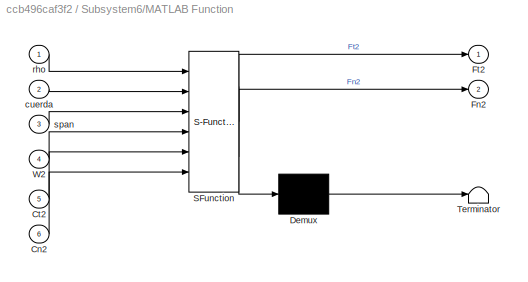
BLOCK [SubSystem] Subsystem6/MATLAB Function
  ErrorFcn = Stateflow.Translate.translate
  FunctionWithSeparateData = off
  MaskHideContents = off
  MinAlgLoopOccurrences = off
  Opaque = off
  PermitHierarchicalResolution = ExplicitOnly
  Ports = [6, 2]
  PropExecContextOutsideSubsystem = off
  RTWSystemCode = Auto
  RequestExecContextInheritance = off
  SFBlockType = MATLAB Function
  TreatAsAtomicUnit = on
BLOCK [Demux] Subsystem6/MATLAB Function/ Demux 
  Outputs = 1
  Ports = [1, 1]
BLOCK [S-Function] Subsystem6/MATLAB Function/ SFunction 
  EnableBusSupport = on
  FunctionName = sf_sfun
  PortCounts = [6 3]
  Ports = [6, 3]
  Tag = Stateflow S-Function v3_modelo 6
BLOCK [Terminator] Subsystem6/MATLAB Function/ Terminator 
BLOCK [Inport] Subsystem6/MATLAB Function/Cn2
  IconDisplay = Port number
  Port = 6
BLOCK [Inport] Subsystem6/MATLAB Function/Ct2
  IconDisplay = Port number
  Port = 5
BLOCK [Outport] Subsystem6/MATLAB Function/Fn2
  IconDisplay = Port number
  Port = 2
BLOCK [Outport] Subsystem6/MATLAB Function/Ft2
  IconDisplay = Port number
BLOCK [Inport] Subsystem6/MATLAB Function/W2
  IconDisplay = Port number
  Port = 4
BLOCK [Inport] Subsystem6/MATLAB Function/cuerda
  IconDisplay = Port number
  Port = 2
BLOCK [Inport] Subsystem6/MATLAB Function/rho
  IconDisplay = Port number
BLOCK [Inport] Subsystem6/MATLAB Function/span
  IconDisplay = Port number
  Port = 3
BLOCK [Inport] Subsystem6/W2
  IconDisplay = Port number
  Port = 4
BLOCK [Inport] Subsystem6/cuerda
  IconDisplay = Port number
  Port = 2
BLOCK [Inport] Subsystem6/rho
  IconDisplay = Port number
BLOCK [Inport] Subsystem6/span
  IconDisplay = Port number
  Port = 3
BLOCK [SubSystem] Subsystem7
  FunctionWithSeparateData = off
  MaskHideContents = off
  MinAlgLoopOccurrences = off
  Opaque = off
  Ports = [4, 1]
  PropExecContextOutsideSubsystem = off
  RTWSystemCode = Auto
  RequestExecContextInheritance = off
BLOCK [Gain] Subsystem7/Conversion
  Gain = 180/pi
  OutDataTypeStr = Inherit: Inherit via internal rule
  ParamDataTypeStr = Inherit: Inherit via internal rule
  SaturateOnIntegerOverflow = off
BLOCK [SubSystem] Subsystem7/MATLAB Function
  ErrorFcn = Stateflow.Translate.translate
  FunctionWithSeparateData = off
  MaskHideContents = off
  MinAlgLoopOccurrences = off
  Opaque = off
  PermitHierarchicalResolution = ExplicitOnly
  Ports = [4, 1]
  PropExecContextOutsideSubsystem = off
  RTWSystemCode = Auto
  RequestExecContextInheritance = off
  SFBlockType = MATLAB Function
  TreatAsAtomicUnit = on
BLOCK [Demux] Subsystem7/MATLAB Function/ Demux 
  Outputs = 1
  Ports = [1, 1]
BLOCK [S-Function] Subsystem7/MATLAB Function/ SFunction 
  EnableBusSupport = on
  FunctionName = sf_sfun
  PortCounts = [4 2]
  Ports = [4, 2]
  Tag = Stateflow S-Function v3_modelo 7
BLOCK [Terminator] Subsystem7/MATLAB Function/ Terminator 
BLOCK [Inport] Subsystem7/MATLAB Function/R
  IconDisplay = Port number
  Port = 3
BLOCK [Inport] Subsystem7/MATLAB Function/U
  IconDisplay = Port number
  Port = 4
BLOCK [Outport] Subsystem7/MATLAB Function/alfa_d_3
  IconDisplay = Port number
BLOCK [Inport] Subsystem7/MATLAB Function/theta_3
  IconDisplay = Port number
BLOCK [Inport] Subsystem7/MATLAB Function/theta_p
  IconDisplay = Port number
  Port = 2
BLOCK [Inport] Subsystem7/R
  IconDisplay = Port number
  Port = 3
BLOCK [Inport] Subsystem7/U
  IconDisplay = Port number
  Port = 4
BLOCK [Outport] Subsystem7/alfa_d3_grados
  IconDisplay = Port number
BLOCK [ToWorkspace] Subsystem7/alfa_d_3
  MaxDataPoints = inf
  Ports = [1]
  SampleTime = -1
  VariableName = alfa_d_3
BLOCK [Inport] Subsystem7/theta_3
  IconDisplay = Port number
BLOCK [Inport] Subsystem7/theta_p
  IconDisplay = Port number
  Port = 2
BLOCK [SubSystem] Subsystem8
  FunctionWithSeparateData = off
  MaskHideContents = off
  MinAlgLoopOccurrences = off
  Opaque = off
  Ports = [3, 2]
  PropExecContextOutsideSubsystem = off
  RTWSystemCode = Auto
  RequestExecContextInheritance = off
BLOCK [Inport] Subsystem8/CL3
  IconDisplay = Port number
  Port = 2
BLOCK [Inport] Subsystem8/Cd3
  IconDisplay = Port number
  Port = 3
BLOCK [Outport] Subsystem8/Cn3
  IconDisplay = Port number
  Port = 2
BLOCK [Outport] Subsystem8/Ct3
  IconDisplay = Port number
BLOCK [SubSystem] Subsystem8/MATLAB Function
  ErrorFcn = Stateflow.Translate.translate
  FunctionWithSeparateData = off
  MaskHideContents = off
  MinAlgLoopOccurrences = off
  Opaque = off
  PermitHierarchicalResolution = ExplicitOnly
  Ports = [3, 2]
  PropExecContextOutsideSubsystem = off
  RTWSystemCode = Auto
  RequestExecContextInheritance = off
  SFBlockType = MATLAB Function
  TreatAsAtomicUnit = on
BLOCK [Demux] Subsystem8/MATLAB Function/ Demux 
  Outputs = 1
  Ports = [1, 1]
BLOCK [S-Function] Subsystem8/MATLAB Function/ SFunction 
  EnableBusSupport = on
  FunctionName = sf_sfun
  PortCounts = [3 3]
  Ports = [3, 3]
  Tag = Stateflow S-Function v3_modelo 8
BLOCK [Terminator] Subsystem8/MATLAB Function/ Terminator 
BLOCK [Inport] Subsystem8/MATLAB Function/CL3
  IconDisplay = Port number
BLOCK [Inport] Subsystem8/MATLAB Function/Cd3
  IconDisplay = Port number
  Port = 2
BLOCK [Outport] Subsystem8/MATLAB Function/Cn3
  IconDisplay = Port number
  Port = 2
BLOCK [Outport] Subsystem8/MATLAB Function/Ct3
  IconDisplay = Port number
BLOCK [Inport] Subsystem8/MATLAB Function/alfa_d_3
  IconDisplay = Port number
  Port = 3
BLOCK [Inport] Subsystem8/alfa_d_3
  IconDisplay = Port number
BLOCK [SubSystem] Subsystem9
  FunctionWithSeparateData = off
  MaskHideContents = off
  MinAlgLoopOccurrences = off
  Opaque = off
  Ports = [6, 2]
  PropExecContextOutsideSubsystem = off
  RTWSystemCode = Auto
  RequestExecContextInheritance = off
BLOCK [Inport] Subsystem9/Cn3
  IconDisplay = Port number
  Port = 6
BLOCK [Inport] Subsystem9/Ct3
  IconDisplay = Port number
  Port = 5
BLOCK [Outport] Subsystem9/Fn3
  IconDisplay = Port number
  Port = 2
BLOCK [Outport] Subsystem9/Ft3
  IconDisplay = Port number
BLOCK [SubSystem] Subsystem9/MATLAB Function
  ErrorFcn = Stateflow.Translate.translate
  FunctionWithSeparateData = off
  MaskHideContents = off
  MinAlgLoopOccurrences = off
  Opaque = off
  PermitHierarchicalResolution = ExplicitOnly
  Ports = [6, 2]
  PropExecContextOutsideSubsystem = off
  RTWSystemCode = Auto
  RequestExecContextInheritance = off
  SFBlockType = MATLAB Function
  TreatAsAtomicUnit = on
BLOCK [Demux] Subsystem9/MATLAB Function/ Demux 
  Outputs = 1
  Ports = [1, 1]
BLOCK [S-Function] Subsystem9/MATLAB Function/ SFunction 
  EnableBusSupport = on
  FunctionName = sf_sfun
  PortCounts = [6 3]
  Ports = [6, 3]
  Tag = Stateflow S-Function v3_modelo 9
BLOCK [Terminator] Subsystem9/MATLAB Function/ Terminator 
BLOCK [Inport] Subsystem9/MATLAB Function/Cn3
  IconDisplay = Port number
  Port = 6
BLOCK [Inport] Subsystem9/MATLAB Function/Ct3
  IconDisplay = Port number
  Port = 5
BLOCK [Outport] Subsystem9/MATLAB Function/Fn3
  IconDisplay = Port number
  Port = 2
BLOCK [Outport] Subsystem9/MATLAB Function/Ft3
  IconDisplay = Port number
BLOCK [Inport] Subsystem9/MATLAB Function/W3
  IconDisplay = Port number
  Port = 4
BLOCK [Inport] Subsystem9/MATLAB Function/cuerda
  IconDisplay = Port number
  Port = 2
BLOCK [Inport] Subsystem9/MATLAB Function/rho
  IconDisplay = Port number
BLOCK [Inport] Subsystem9/MATLAB Function/span
  IconDisplay = Port number
  Port = 3
BLOCK [Inport] Subsystem9/W3
  IconDisplay = Port number
  Port = 4
BLOCK [Inport] Subsystem9/cuerda
  IconDisplay = Port number
  Port = 2
BLOCK [Inport] Subsystem9/rho
  IconDisplay = Port number
BLOCK [Inport] Subsystem9/span
  IconDisplay = Port number
  Port = 3
BLOCK [Sum] Sum
  IconShape = round
  InputSameDT = off
  Inputs = |+-
  OutDataTypeStr = Inherit: Inherit via internal rule
  Ports = [2, 1]
  SaturateOnIntegerOverflow = off
BLOCK [Sum] Sum1
  InputSameDT = off
  Inputs = |+++
  OutDataTypeStr = Inherit: Inherit via internal rule
  Ports = [3, 1]
  SaturateOnIntegerOverflow = off
BLOCK [Sum] Sum2
  InputSameDT = off
  Inputs = |++
  OutDataTypeStr = Inherit: Inherit via internal rule
  Ports = [2, 1]
  SaturateOnIntegerOverflow = off
BLOCK [Sum] Sum3
  InputSameDT = off
  Inputs = |++
  OutDataTypeStr = Inherit: Inherit via internal rule
  Ports = [2, 1]
  SaturateOnIntegerOverflow = off
BLOCK [Sum] Sum4
  InputSameDT = off
  Inputs = |++
  OutDataTypeStr = Inherit: Inherit via internal rule
  Ports = [2, 1]
  SaturateOnIntegerOverflow = off
BLOCK [ToWorkspace] To Workspace
  MaxDataPoints = inf
  Ports = [1]
  SampleTime = -1
  VariableName = tiempo
BLOCK [ToWorkspace] To Workspace1
  MaxDataPoints = inf
  Ports = [1]
  SampleTime = -1
  VariableName = theta
BLOCK [ToWorkspace] To Workspace10
  MaxDataPoints = inf
  Ports = [1]
  SampleTime = -1
  VariableName = Ft1
BLOCK [ToWorkspace] To Workspace11
  MaxDataPoints = inf
  Ports = [1]
  SampleTime = -1
  VariableName = Ft2
BLOCK [ToWorkspace] To Workspace12
  MaxDataPoints = inf
  Ports = [1]
  SampleTime = -1
  VariableName = Ft3
BLOCK [ToWorkspace] To Workspace13
  MaxDataPoints = inf
  Ports = [1]
  SampleTime = -1
  VariableName = U
BLOCK [ToWorkspace] To Workspace14
  MaxDataPoints = inf
  Ports = [1]
  SampleTime = -1
  VariableName = Vdc
BLOCK [ToWorkspace] To Workspace2
  MaxDataPoints = inf
  Ports = [1]
  SampleTime = -1
  VariableName = TSR
BLOCK [ToWorkspace] To Workspace3
  MaxDataPoints = inf
  Ports = [1]
  SampleTime = -1
  VariableName = Fn1
BLOCK [ToWorkspace] To Workspace4
  MaxDataPoints = inf
  Ports = [1]
  SampleTime = -1
  VariableName = Fn2
BLOCK [ToWorkspace] To Workspace5
  MaxDataPoints = inf
  Ports = [1]
  SampleTime = -1
  VariableName = Fn3
BLOCK [ToWorkspace] To Workspace6
  MaxDataPoints = inf
  Ports = [1]
  SampleTime = -1
  VariableName = Torque
BLOCK [ToWorkspace] To Workspace7
  MaxDataPoints = inf
  Ports = [1]
  SampleTime = -1
  VariableName = T1
BLOCK [ToWorkspace] To Workspace7 rpm
  MaxDataPoints = inf
  Ports = [1]
  SampleTime = -1
  VariableName = rpm
BLOCK [ToWorkspace] To Workspace8
  MaxDataPoints = inf
  Ports = [1]
  SampleTime = -1
  VariableName = T2
BLOCK [ToWorkspace] To Workspace9
  MaxDataPoints = inf
  Ports = [1]
  SampleTime = -1
  VariableName = T3
BLOCK [Constant] cuerda
  Value = 0.25
BLOCK [Constant] rho
  Value = 1.225
ANNOTATION (root): theta
ANNOTATION (root): theta_p
ANNOTATION (root): theta_p_p
LINE 2-D Lookup Table CD1:1 -> Subsystem1:3
LINE 2-D Lookup Table CD2:1 -> Subsystem5:3
LINE 2-D Lookup Table CD3:1 -> Subsystem8:3
LINE 2-D Lookup Table CL1:1 -> Subsystem1:2
LINE 2-D Lookup Table CL2:1 -> Subsystem5:2
LINE 2-D Lookup Table CL3:1 -> Subsystem8:2
LINE Clock:1 -> To Workspace:1
LINE Constant Angulo alabe 2:1 -> Gain3:1
LINE Constant Angulo alabe 3:1 -> Gain4:1
LINE Constant Inercia:1 -> Sum4:2
NET Constant Radio Rotor1:1 -> Subsystem15:2, Subsystem3:2
LINE Constant Radio Rotor2:1 -> Subsystem10:2
LINE Constant Radio Rotor3:1 -> Subsystem11:2
NET Constant Radio Rotor:1 -> Subsystem12:2, Subsystem13:2, Subsystem14:2, Subsystem4:3, Subsystem7:3, Subsystem:3
LINE Constant Tres:1 -> Sum:2
LINE Constant espiras:1 -> Multiplica:1
NET Constant mu:1 -> Subsystem16:4, Subsystem17:4, Subsystem18:4
LINE Divide:1 -> Integrator:1
LINE Gain1:1 -> To Workspace1:1
LINE Gain2:1 -> Sum4:1
LINE Gain3:1 -> Sum2:2
LINE Gain4:1 -> Sum3:2
NET Gain5:1 -> Multiplica:2, To Workspace7 rpm:1
LINE Gain6 Generador:1 -> To Workspace14:1
NET Integrator1:1 -> Gain1:1, Subsystem12:4, Subsystem:1, Sum2:1, Sum3:1
NET Integrator:1 -> Gain2:1, Gain5:1, Integrator1:1, Subsystem12:3, Subsystem13:3, Subsystem14:3, Subsystem15:1, Subsystem4:2, Subsystem7:2, Subsystem:2
LINE Multiplica:1 -> Gain6 Generador:1
NET Random Number:1 -> Subsystem12:1, Subsystem13:1, Subsystem14:1, Subsystem15:3, Subsystem4:4, Subsystem7:4, Subsystem:4, To Workspace13:1
NET Span:1 -> Subsystem2:3, Subsystem6:3, Subsystem9:3
NET Subsystem/Conversion:1 -> Subsystem/alfa_d1_grados:1, Subsystem/alfa_d_1:1
LINE Subsystem/MATLAB Function:1 -> Subsystem/Conversion:1
LINE Subsystem/R:1 -> Subsystem/MATLAB Function:3
LINE Subsystem/U:1 -> Subsystem/MATLAB Function:4
LINE Subsystem/theta_1:1 -> Subsystem/MATLAB Function:1
LINE Subsystem/theta_p:1 -> Subsystem/MATLAB Function:2
LINE Subsystem1/CL1:1 -> Subsystem1/MATLAB Function:1
LINE Subsystem1/Cd1:1 -> Subsystem1/MATLAB Function:2
LINE Subsystem1/MATLAB Function:1 -> Subsystem1/Ct1:1
LINE Subsystem1/MATLAB Function:2 -> Subsystem1/Cn1:1
LINE Subsystem1/alfa_d_1:1 -> Subsystem1/MATLAB Function:3
LINE Subsystem10/Ft2:1 -> Subsystem10/Gain:1
LINE Subsystem10/Gain:1 -> Subsystem10/Product:1
LINE Subsystem10/Product:1 -> Subsystem10/T2:1
LINE Subsystem10/R:1 -> Subsystem10/Radio Rotor:1
LINE Subsystem10/Radio Rotor:1 -> Subsystem10/Product:2
NET Subsystem10:1 -> Sum1:2, To Workspace8:1
LINE Subsystem11/Ft3:1 -> Subsystem11/Gain:1
LINE Subsystem11/Gain:1 -> Subsystem11/Product:1
LINE Subsystem11/Product:1 -> Subsystem11/T3:1
LINE Subsystem11/R:1 -> Subsystem11/Radio Rotor:1
LINE Subsystem11/Radio Rotor:1 -> Subsystem11/Product:2
NET Subsystem11:1 -> Sum1:3, To Workspace9:1
LINE Subsystem12/MATLAB Function:1 -> Subsystem12/W1:1
LINE Subsystem12/R:1 -> Subsystem12/MATLAB Function:2
LINE Subsystem12/U:1 -> Subsystem12/MATLAB Function:1
LINE Subsystem12/theta_1:1 -> Subsystem12/MATLAB Function:4
LINE Subsystem12/theta_p:1 -> Subsystem12/MATLAB Function:3
NET Subsystem12:1 -> Subsystem16:1, Subsystem2:4
LINE Subsystem13/MATLAB Function:1 -> Subsystem13/W2:1
LINE Subsystem13/R:1 -> Subsystem13/MATLAB Function:2
LINE Subsystem13/U:1 -> Subsystem13/MATLAB Function:1
LINE Subsystem13/theta_2:1 -> Subsystem13/MATLAB Function:4
LINE Subsystem13/theta_p:1 -> Subsystem13/MATLAB Function:3
NET Subsystem13:1 -> Subsystem17:1, Subsystem6:4
LINE Subsystem14/MATLAB Function:1 -> Subsystem14/W3:1
LINE Subsystem14/R:1 -> Subsystem14/MATLAB Function:2
LINE Subsystem14/U:1 -> Subsystem14/MATLAB Function:1
LINE Subsystem14/theta_3:1 -> Subsystem14/MATLAB Function:4
LINE Subsystem14/theta_p:1 -> Subsystem14/MATLAB Function:3
NET Subsystem14:1 -> Subsystem18:1, Subsystem9:4
LINE Subsystem15/MATLAB Function:1 -> Subsystem15/TSR:1
LINE Subsystem15/R:1 -> Subsystem15/MATLAB Function:2
LINE Subsystem15/U:1 -> Subsystem15/MATLAB Function:3
LINE Subsystem15/theta_p:1 -> Subsystem15/MATLAB Function:1
LINE Subsystem15:1 -> To Workspace2:1
LINE Subsystem16/MATLAB Function:1 -> Subsystem16/Re1:1
LINE Subsystem16/W1:1 -> Subsystem16/MATLAB Function:1
LINE Subsystem16/c:1 -> Subsystem16/MATLAB Function:3
LINE Subsystem16/mu:1 -> Subsystem16/MATLAB Function:4
LINE Subsystem16/rho:1 -> Subsystem16/MATLAB Function:2
NET Subsystem16:1 -> 2-D Lookup Table CD1:2, 2-D Lookup Table CL1:2
LINE Subsystem17/MATLAB Function:1 -> Subsystem17/Re2:1
LINE Subsystem17/W2:1 -> Subsystem17/MATLAB Function:1
LINE Subsystem17/c:1 -> Subsystem17/MATLAB Function:3
LINE Subsystem17/mu:1 -> Subsystem17/MATLAB Function:4
LINE Subsystem17/rho:1 -> Subsystem17/MATLAB Function:2
NET Subsystem17:1 -> 2-D Lookup Table CD2:2, 2-D Lookup Table CL2:2
LINE Subsystem18/MATLAB Function:1 -> Subsystem18/Re3:1
LINE Subsystem18/W3:1 -> Subsystem18/MATLAB Function:1
LINE Subsystem18/c:1 -> Subsystem18/MATLAB Function:3
LINE Subsystem18/mu:1 -> Subsystem18/MATLAB Function:4
LINE Subsystem18/rho:1 -> Subsystem18/MATLAB Function:2
NET Subsystem18:1 -> 2-D Lookup Table CD3:2, 2-D Lookup Table CL3:2
LINE Subsystem1:1 -> Subsystem2:5
LINE Subsystem1:2 -> Subsystem2:6
LINE Subsystem2/Cn1:1 -> Subsystem2/MATLAB Function:6
LINE Subsystem2/Ct1:1 -> Subsystem2/MATLAB Function:5
LINE Subsystem2/MATLAB Function:1 -> Subsystem2/Ft1:1
LINE Subsystem2/MATLAB Function:2 -> Subsystem2/Fn1:1
LINE Subsystem2/W1:1 -> Subsystem2/MATLAB Function:4
LINE Subsystem2/cuerda:1 -> Subsystem2/MATLAB Function:2
LINE Subsystem2/rho:1 -> Subsystem2/MATLAB Function:1
LINE Subsystem2/span:1 -> Subsystem2/MATLAB Function:3
NET Subsystem2:1 -> Subsystem3:1, To Workspace10:1
LINE Subsystem2:2 -> To Workspace3:1
LINE Subsystem3/Ft1:1 -> Subsystem3/Gain:1
LINE Subsystem3/Gain:1 -> Subsystem3/Product:1
LINE Subsystem3/Product:1 -> Subsystem3/T1:1
LINE Subsystem3/R:1 -> Subsystem3/Radio Rotor:1
LINE Subsystem3/Radio Rotor:1 -> Subsystem3/Product:2
NET Subsystem3:1 -> Sum1:1, To Workspace7:1
NET Subsystem4/Conversion:1 -> Subsystem4/alfa_d2_grados:1, Subsystem4/alfa_d_2:1
LINE Subsystem4/MATLAB Function:1 -> Subsystem4/Conversion:1
LINE Subsystem4/R:1 -> Subsystem4/MATLAB Function:3
LINE Subsystem4/U:1 -> Subsystem4/MATLAB Function:4
LINE Subsystem4/theta_2:1 -> Subsystem4/MATLAB Function:1
LINE Subsystem4/theta_p:1 -> Subsystem4/MATLAB Function:2
NET Subsystem4:1 -> 2-D Lookup Table CD2:1, 2-D Lookup Table CL2:1, Subsystem5:1
LINE Subsystem5/CL2:1 -> Subsystem5/MATLAB Function:1
LINE Subsystem5/Cd2:1 -> Subsystem5/MATLAB Function:2
LINE Subsystem5/MATLAB Function:1 -> Subsystem5/Ct2:1
LINE Subsystem5/MATLAB Function:2 -> Subsystem5/Cn2:1
LINE Subsystem5/alfa_d_2:1 -> Subsystem5/MATLAB Function:3
LINE Subsystem5:1 -> Subsystem6:5
LINE Subsystem5:2 -> Subsystem6:6
LINE Subsystem6/Cn2:1 -> Subsystem6/MATLAB Function:6
LINE Subsystem6/Ct2:1 -> Subsystem6/MATLAB Function:5
LINE Subsystem6/MATLAB Function:1 -> Subsystem6/Ft2:1
LINE Subsystem6/MATLAB Function:2 -> Subsystem6/Fn2:1
LINE Subsystem6/W2:1 -> Subsystem6/MATLAB Function:4
LINE Subsystem6/cuerda:1 -> Subsystem6/MATLAB Function:2
LINE Subsystem6/rho:1 -> Subsystem6/MATLAB Function:1
LINE Subsystem6/span:1 -> Subsystem6/MATLAB Function:3
NET Subsystem6:1 -> Subsystem10:1, To Workspace11:1
LINE Subsystem6:2 -> To Workspace4:1
NET Subsystem7/Conversion:1 -> Subsystem7/alfa_d3_grados:1, Subsystem7/alfa_d_3:1
LINE Subsystem7/MATLAB Function:1 -> Subsystem7/Conversion:1
LINE Subsystem7/R:1 -> Subsystem7/MATLAB Function:3
LINE Subsystem7/U:1 -> Subsystem7/MATLAB Function:4
LINE Subsystem7/theta_3:1 -> Subsystem7/MATLAB Function:1
LINE Subsystem7/theta_p:1 -> Subsystem7/MATLAB Function:2
NET Subsystem7:1 -> 2-D Lookup Table CD3:1, 2-D Lookup Table CL3:1, Subsystem8:1
LINE Subsystem8/CL3:1 -> Subsystem8/MATLAB Function:1
LINE Subsystem8/Cd3:1 -> Subsystem8/MATLAB Function:2
LINE Subsystem8/MATLAB Function:1 -> Subsystem8/Ct3:1
LINE Subsystem8/MATLAB Function:2 -> Subsystem8/Cn3:1
LINE Subsystem8/alfa_d_3:1 -> Subsystem8/MATLAB Function:3
LINE Subsystem8:1 -> Subsystem9:5
LINE Subsystem8:2 -> Subsystem9:6
LINE Subsystem9/Cn3:1 -> Subsystem9/MATLAB Function:6
LINE Subsystem9/Ct3:1 -> Subsystem9/MATLAB Function:5
LINE Subsystem9/MATLAB Function:1 -> Subsystem9/Ft3:1
LINE Subsystem9/MATLAB Function:2 -> Subsystem9/Fn3:1
LINE Subsystem9/W3:1 -> Subsystem9/MATLAB Function:4
LINE Subsystem9/cuerda:1 -> Subsystem9/MATLAB Function:2
LINE Subsystem9/rho:1 -> Subsystem9/MATLAB Function:1
LINE Subsystem9/span:1 -> Subsystem9/MATLAB Function:3
NET Subsystem9:1 -> Subsystem11:1, To Workspace12:1
LINE Subsystem9:2 -> To Workspace5:1
NET Subsystem:1 -> 2-D Lookup Table CD1:1, 2-D Lookup Table CL1:1, Subsystem1:1
NET Sum1:1 -> Sum:1, To Workspace6:1
NET Sum2:1 -> Subsystem13:4, Subsystem4:1
NET Sum3:1 -> Subsystem14:4, Subsystem7:1
LINE Sum4:1 -> Divide:2
LINE Sum:1 -> Divide:1
NET cuerda:1 -> Subsystem16:3, Subsystem17:3, Subsystem18:3, Subsystem2:2, Subsystem6:2, Subsystem9:2
NET rho:1 -> Subsystem16:2, Subsystem17:2, Subsystem18:2, Subsystem2:1, Subsystem6:1, Subsystem9:1
note: NET lines group one-source signal fan-out (src -> all destinations, sorted); 1:1 wires keep LINE
